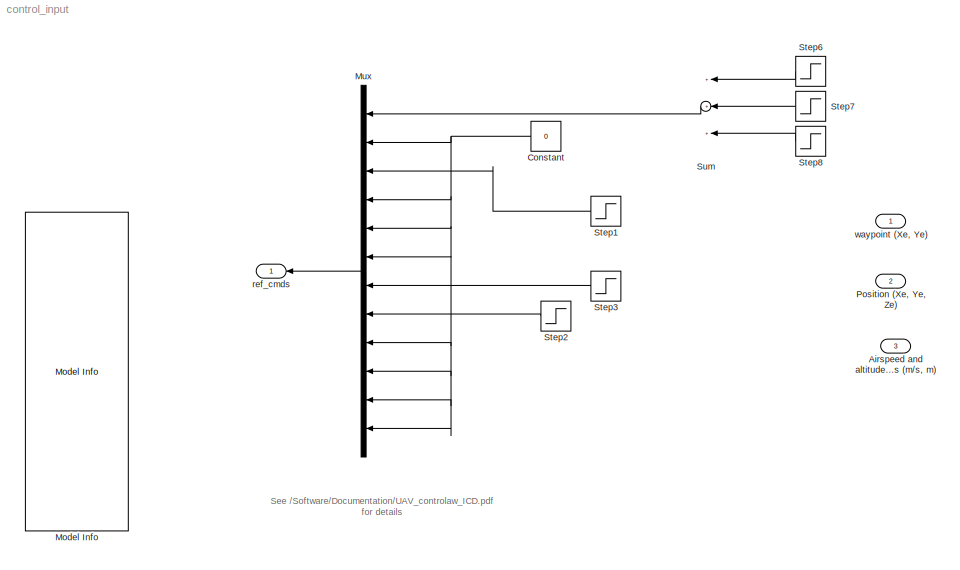
MODEL control_input
KIND model
BLOCK [Inport] Airspeed and altitude commands (m//s, m)
  IconDisplay = Port number
  Port = 3
  SID = 37
BLOCK [Constant] Constant
  SID = 30
  Value = 0
BLOCK [Reference] Model Info  REF=simulink/Model-Wide\nUtilities/Model Info
  BlockCM = None
  DisplayStringWithTags = Ref Cmd Port Info\n\n1. phi_cmd\n2. theta_cmd\n3. psi_cmd\n4. p_cmd\n5. q_cmd\n6. r_cmd\n7. V_s_cmd\n8. h_cmd\n9. gndtrk_cmd\n10. aoa_cmd\n11. aos_cmd\n12. gamma_cmd
  Frame = on
  HorizontalTextAlignment = Center
  InitialBlockCM = None
  LeftAlignmentValue = 0.5
  MaskDisplayString = Ref Cmd Port Info\\n\\n1. phi_cmd\\n2. theta_cmd\\n3. psi_cmd\\n4. p_cmd\\n5. q_cmd\\n6. r_cmd\\n7. V_s_cmd\\n8. h_cmd\\n9. gndtrk_cmd\\n10. aoa_cmd\\n11. aos_cmd\\n12. gamma_cmd
  Ports = []
  SID = 22
  SourceBlock = simulink/Model-Wide\nUtilities/Model Info
  SourceBlockDiagram = control_input
  SourceType = CMBlock
  TagMaxNumber = 20
BLOCK [Mux] Mux
  DisplayOption = bar
  Inputs = 12
  Ports = [12, 1]
  SID = 8
BLOCK [Inport] Position (Xe, Ye, Ze)
  IconDisplay = Port number
  Port = 2
  SID = 36
BLOCK [Step] Step1
  After = 90*pi/180
  SID = 32
  SampleTime = SampleTime
  Time = 20
BLOCK [Step] Step2
  After = 10
  SID = 33
  SampleTime = SampleTime
  Time = 20
BLOCK [Step] Step3
  After = -10
  SID = 34
  SampleTime = SampleTime
  Time = 35
BLOCK [Step] Step6
  After = 5*pi/180
  SID = 9
  SampleTime = SampleTime
BLOCK [Step] Step7
  After = -10*pi/180
  SID = 10
  SampleTime = SampleTime
  Time = 5
BLOCK [Step] Step8
  After = 5*pi/180
  SID = 11
  SampleTime = SampleTime
  Time = 9
BLOCK [Sum] Sum
  InputSameDT = off
  Inputs = +++
  OutDataTypeStr = Inherit: Inherit via internal rule
  Ports = [3, 1]
  SID = 12
  SampleTime = SampleTime
  SaturateOnIntegerOverflow = off
BLOCK [Outport] ref_cmds
  IconDisplay = Port number
  SID = 14
BLOCK [Inport] waypoint (Xe, Ye)
  IconDisplay = Port number
  SID = 35
ANNOTATION (root): See /Software/Documentation/UAV_controlaw_ICD.pdf\nfor details
NET Constant:1 -> Mux:10, Mux:11, Mux:12, Mux:2, Mux:4, Mux:5, Mux:6, Mux:9
LINE Mux:1 -> ref_cmds:1
LINE Step1:1 -> Mux:3
LINE Step2:1 -> Mux:8
LINE Step3:1 -> Mux:7
LINE Step6:1 -> Sum:1
LINE Step7:1 -> Sum:2
LINE Step8:1 -> Sum:3
LINE Sum:1 -> Mux:1
note: NET lines group one-source signal fan-out (src -> all destinations, sorted); 1:1 wires keep LINE
